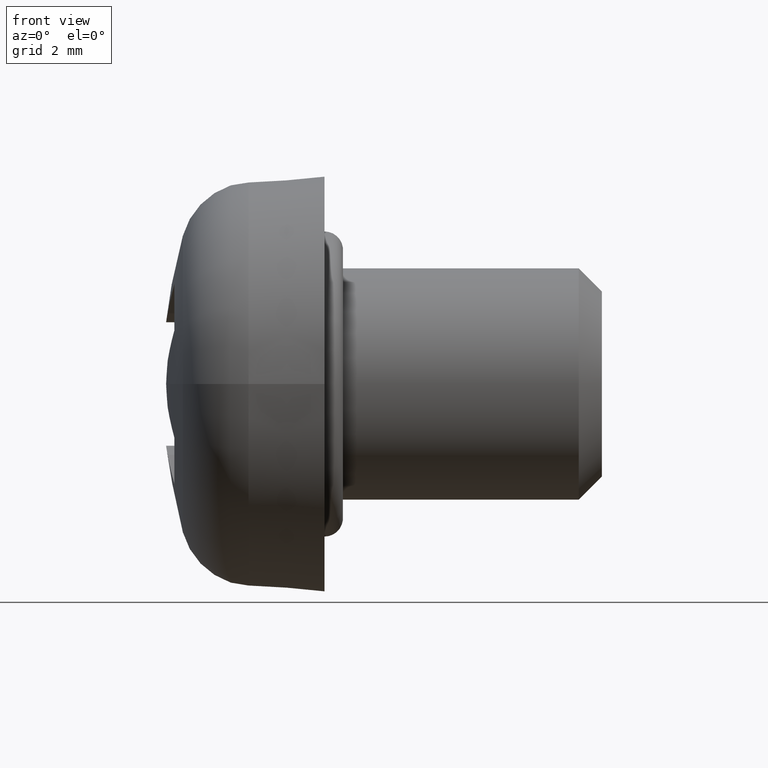
[diagram: clean part render]
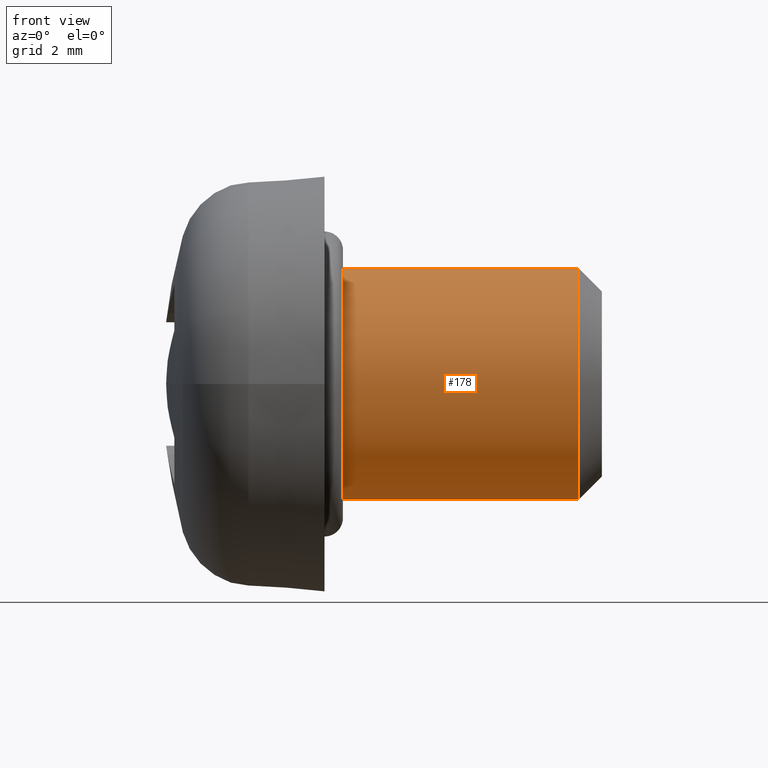
[diagram: same view with one face highlighted and labeled with its STEP entity id]
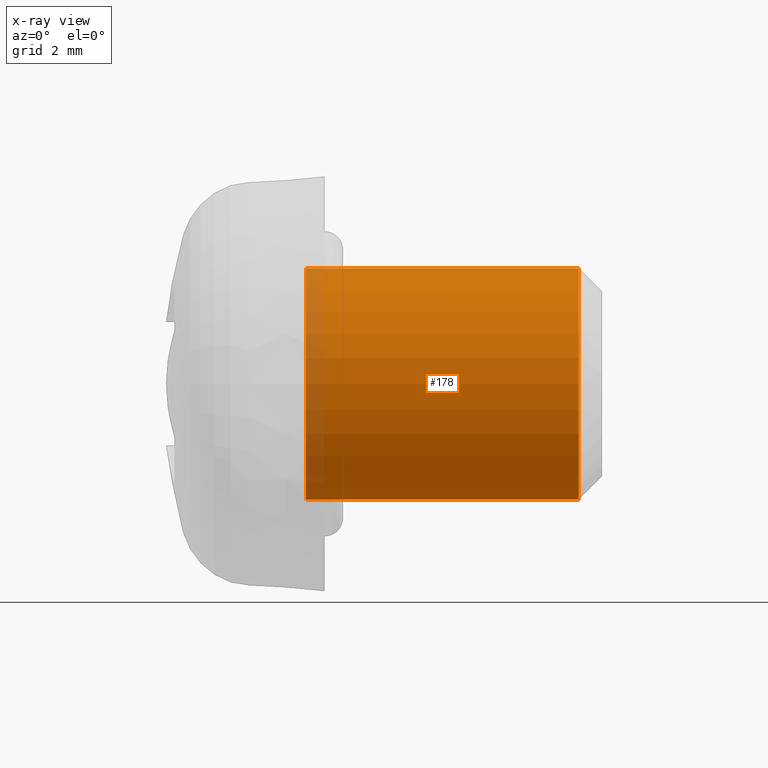
[diagram: x-ray of the same camera — body ghosted, the highlighted face saturated]
A machine part, front view. The second image highlights one B-rep face of the part: STEP entity #178.
The next image is the same camera in x-ray: the body ghosted, the highlighted face saturated — about 7% of this face is hidden behind the body in this view.
In plain terms, the highlighted cylindrical surface (partial cylindrical patch) has radius 2.5 mm, axis along (-1, -0, -0).
Its self-contained STEP definition (entity closure, byte-faithful):
#5 = CARTESIAN_POINT ( 'NONE',  ( 5.500000000000000000, 0.0000000000000000000, 0.0000000000000000000 ) ) ;
#25 = FACE_OUTER_BOUND ( 'NONE', #29, .T. ) ;
#29 = EDGE_LOOP ( 'NONE', ( #844, #521, #858, #1124 ) ) ;
#71 = CARTESIAN_POINT ( 'NONE',  ( -0.4000000000000000200, 0.0000000000000000000, 0.0000000000000000000 ) ) ;
#103 = LINE ( 'NONE', #971, #827 ) ;
#178 = ADVANCED_FACE ( 'NONE', ( #25 ), #1010, .T. ) ;
#243 = CARTESIAN_POINT ( 'NONE',  ( 6.000000000000000000, 0.0000000000000000000, 2.500000000000000000 ) ) ;
#257 = EDGE_CURVE ( 'NONE', #628, #833, #1237, .T. ) ;
#310 = CARTESIAN_POINT ( 'NONE',  ( 6.000000000000000000, 0.0000000000000000000, 0.0000000000000000000 ) ) ;
#380 = VERTEX_POINT ( 'NONE', #771 ) ;
#394 = DIRECTION ( 'NONE',  ( -1.000000000000000000, -0.0000000000000000000, -0.0000000000000000000 ) ) ;
#466 = AXIS2_PLACEMENT_3D ( 'NONE', #310, #394, #581 ) ;
#504 = AXIS2_PLACEMENT_3D ( 'NONE', #71, #1064, #765 ) ;
#521 = ORIENTED_EDGE ( 'NONE', *, *, #257, .T. ) ;
#538 = AXIS2_PLACEMENT_3D ( 'NONE', #5, #921, #918 ) ;
#564 = EDGE_CURVE ( 'NONE', #833, #965, #1094, .T. ) ;
#581 = DIRECTION ( 'NONE',  ( 0.0000000000000000000, 0.0000000000000000000, 1.000000000000000000 ) ) ;
#628 = VERTEX_POINT ( 'NONE', #709 ) ;
#693 = CARTESIAN_POINT ( 'NONE',  ( -0.4000000000000000200, 0.0000000000000000000, 2.500000000000000000 ) ) ;
#709 = CARTESIAN_POINT ( 'NONE',  ( 5.500000000000000000, 3.061616997868383100E-016, -2.500000000000000000 ) ) ;
#765 = DIRECTION ( 'NONE',  ( 0.0000000000000000000, 0.0000000000000000000, -1.000000000000000000 ) ) ;
#767 = CARTESIAN_POINT ( 'NONE',  ( 5.500000000000000000, 0.0000000000000000000, 2.500000000000000000 ) ) ;
#771 = CARTESIAN_POINT ( 'NONE',  ( -0.4000000000000000200, 3.061616997868383100E-016, -2.500000000000000000 ) ) ;
#816 = DIRECTION ( 'NONE',  ( -1.000000000000000000, -0.0000000000000000000, -0.0000000000000000000 ) ) ;
#827 = VECTOR ( 'NONE', #1045, 1000.000000000000000 ) ;
#833 = VERTEX_POINT ( 'NONE', #767 ) ;
#844 = ORIENTED_EDGE ( 'NONE', *, *, #1192, .F. ) ;
#848 = VECTOR ( 'NONE', #816, 1000.000000000000000 ) ;
#858 = ORIENTED_EDGE ( 'NONE', *, *, #564, .T. ) ;
#918 = DIRECTION ( 'NONE',  ( 0.0000000000000000000, 0.0000000000000000000, -1.000000000000000000 ) ) ;
#921 = DIRECTION ( 'NONE',  ( -1.000000000000000000, 0.0000000000000000000, 0.0000000000000000000 ) ) ;
#965 = VERTEX_POINT ( 'NONE', #693 ) ;
#971 = CARTESIAN_POINT ( 'NONE',  ( 6.000000000000000000, 3.061616997868383100E-016, -2.500000000000000000 ) ) ;
#1010 = CYLINDRICAL_SURFACE ( 'NONE', #466, 2.500000000000000000 ) ;
#1045 = DIRECTION ( 'NONE',  ( -1.000000000000000000, -0.0000000000000000000, -0.0000000000000000000 ) ) ;
#1064 = DIRECTION ( 'NONE',  ( 1.000000000000000000, 0.0000000000000000000, 0.0000000000000000000 ) ) ;
#1094 = LINE ( 'NONE', #243, #848 ) ;
#1124 = ORIENTED_EDGE ( 'NONE', *, *, #1164, .T. ) ;
#1127 = CIRCLE ( 'NONE', #504, 2.500000000000000000 ) ;
#1164 = EDGE_CURVE ( 'NONE', #965, #380, #1127, .T. ) ;
#1192 = EDGE_CURVE ( 'NONE', #628, #380, #103, .T. ) ;
#1237 = CIRCLE ( 'NONE', #538, 2.500000000000000000 ) ;